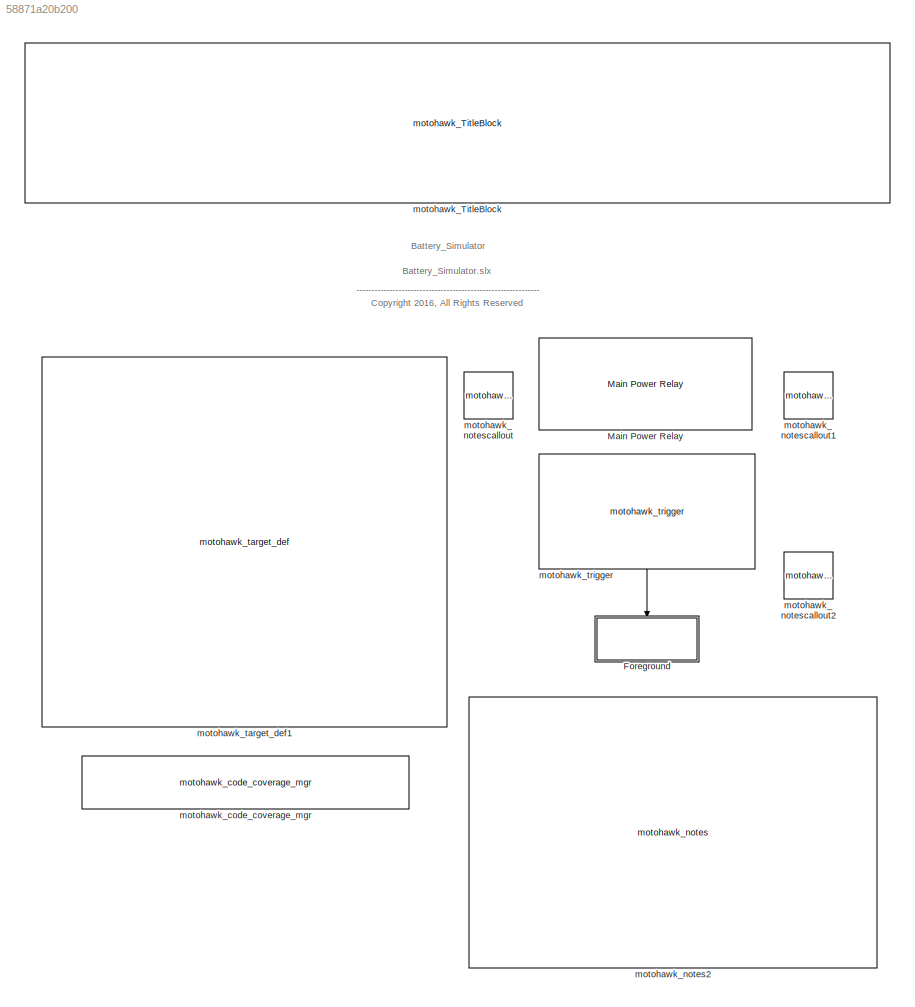
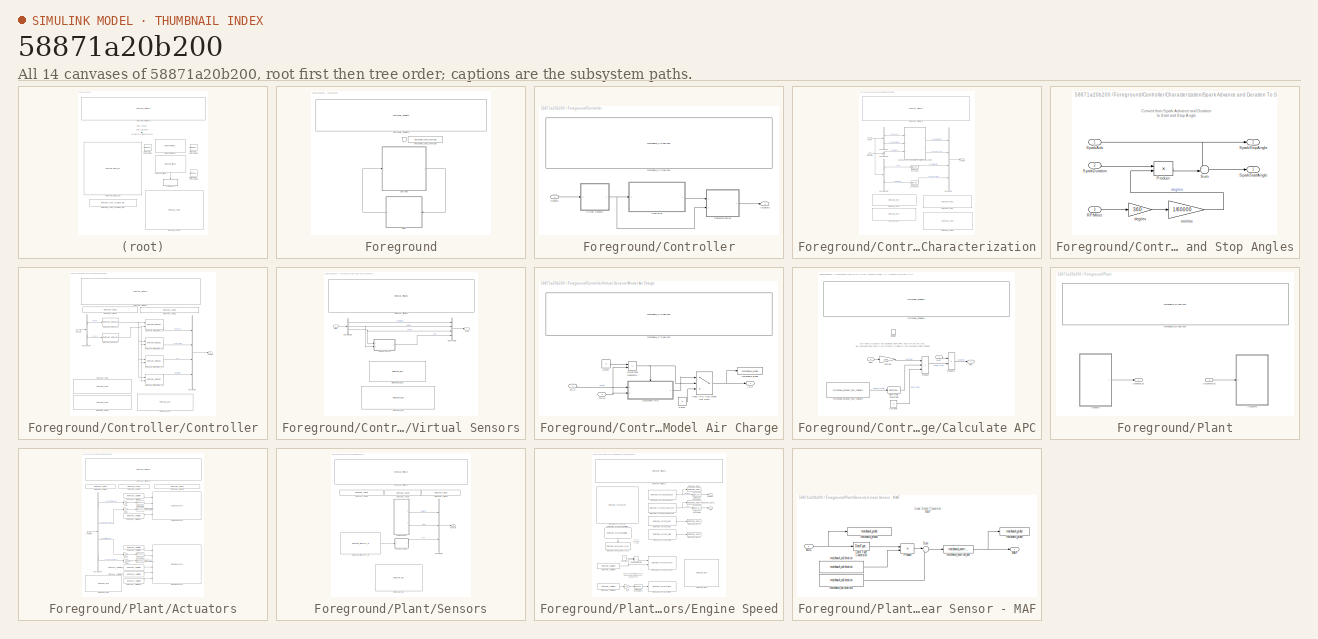
[diagram: thumbnail index - all 14 canvases of the model, root first then tree order]
MODEL slx_58871a20b200
KIND model
CONFIG InitFcn = try, eval([bdroot '_setup']); catch, eval('model_setup', ''); end
CONFIG PreLoadFcn = try, eval([bdroot '_setup']); catch, eval('model_setup', ''); end
BLOCK [SubSystem] Foreground
  Ports = [0, 0, 0, 1]
  RTWFcnNameOpts = Use subsystem name
  RTWFileNameOpts = Use function name
  RTWSystemCode = Nonreusable function
  RequestExecContextInheritance = off
  TreatAsAtomicUnit = on
BLOCK [SubSystem] Foreground/Controller
  MoveFcn = motohawk_block_image(gcb, motohawk_get_param_ws(gcb, 'image_file'));
  OpenFcn = open_system(gcb,'force')
  Ports = [1, 1]
  RequestExecContextInheritance = off
BLOCK [Outport] Foreground/Controller/Actuators
  IconDisplay = Port number
BLOCK [SubSystem] Foreground/Controller/Characterization
  Ports = [2, 1]
  RequestExecContextInheritance = off
BLOCK [Outport] Foreground/Controller/Characterization/Actuators
  IconDisplay = Port number
BLOCK [BusCreator] Foreground/Controller/Characterization/Bus Creator
  DisplayOption = bar
  Ports = [4, 1]
BLOCK [BusSelector] Foreground/Controller/Characterization/Bus Selector
  OutputSignals = SparkAdv,SparkDuration
  Ports = [1, 2]
BLOCK [BusSelector] Foreground/Controller/Characterization/Bus Selector1
  OutputSignals = RPMInst
  Ports = [1, 1]
BLOCK [BusSelector] Foreground/Controller/Characterization/Bus Selector2
  OutputSignals = SOI,InjDuration
  Ports = [1, 2]
BLOCK [Inport] Foreground/Controller/Characterization/Control
  IconDisplay = Port number
BLOCK [DataTypeConversion] Foreground/Controller/Characterization/Data Type Conversion
BLOCK [DataTypeConversion] Foreground/Controller/Characterization/Data Type Conversion1
BLOCK [Inport] Foreground/Controller/Characterization/Sensors
  IconDisplay = Port number
  Port = 2
BLOCK [SubSystem] Foreground/Controller/Characterization/Spark Advance and Duration To Start and Stop Angles
  Ports = [3, 2]
  RequestExecContextInheritance = off
BLOCK [Product] Foreground/Controller/Characterization/Spark Advance and Duration To Start and Stop Angles/Product
  Ports = [2, 1]
  RndMeth = Floor
  SaturateOnIntegerOverflow = off
BLOCK [Inport] Foreground/Controller/Characterization/Spark Advance and Duration To Start and Stop Angles/RPMInst
  IconDisplay = Port number
  Port = 3
BLOCK [Inport] Foreground/Controller/Characterization/Spark Advance and Duration To Start and Stop Angles/SparkAdv
  IconDisplay = Port number
BLOCK [Inport] Foreground/Controller/Characterization/Spark Advance and Duration To Start and Stop Angles/SparkDuration
  IconDisplay = Port number
  Port = 2
BLOCK [Outport] Foreground/Controller/Characterization/Spark Advance and Duration To Start and Stop Angles/SparkStartAngle
  IconDisplay = Port number
BLOCK [Outport] Foreground/Controller/Characterization/Spark Advance and Duration To Start and Stop Angles/SparkStopAngle
  IconDisplay = Port number
  Port = 2
BLOCK [Sum] Foreground/Controller/Characterization/Spark Advance and Duration To Start and Stop Angles/Sum
  IconShape = round
  Inputs = ++|
  OutDataTypeStr = Inherit: Inherit via internal rule
  Ports = [2, 1]
  SaturateOnIntegerOverflow = off
BLOCK [Gain] Foreground/Controller/Characterization/Spark Advance and Duration To Start and Stop Angles/deg//rev
  Gain = 360
BLOCK [Gain] Foreground/Controller/Characterization/Spark Advance and Duration To Start and Stop Angles/min//ms
  Gain = 1/60000
BLOCK [Reference] Foreground/Controller/Characterization/motohawk_TitleBlock  REF=motohawk_annotations_lib/motohawk_TitleBlock
  BlockType_ = 'Mototron_Title_Block'
  Ports = []
  SourceBlock = motohawk_annotations_lib/motohawk_TitleBlock
  SourceType = MotoHawk Title Block
  address = '\fontsize{22}\it\fontname{Arial Black}Woodward \fontname{Arial}\fontsize{10}\newline1000 East Drake Road, Fort Collins, CO, 80525\newlinemcs.woodward.com (866) 588-0494'
  edit_as = 6
  edit_text = [get_param(bdroot, 'Description') '\rm\n\n\nActuator Characterization\n\n\nConverts or linearizes controller units to actuator units\n\n\n']
  image_file = 'mh.jpg'
  pretty_print = on
  ttl = [get_param(bdroot, 'Description') '\rm\newlineActuator Characterization\newlineConverts or linearizes controller units to actuator units\newline']
BLOCK [Reference] Foreground/Controller/Characterization/motohawk_notes  REF=motohawk_annotations_lib/motohawk_notes
  BlockType_ = 'Mototron_Notes'
  Ports = []
  SourceBlock = motohawk_annotations_lib/motohawk_notes
  SourceType = Notes Annotation
  desc = '- Outputs from here are still entirely in engineering\newlineunits, but are converted from a form used by the\newlinecontroller to one required by the physical actuators'
  edit_as = 0
  edit_text = - Outputs from here are still entirely in engineering\n\n\nunits, but are converted from a form used by the\n\n\ncontroller to one required by the physical actuators
BLOCK [Reference] Foreground/Controller/Characterization/motohawk_notes1  REF=motohawk_annotations_lib/motohawk_notes
  BlockType_ = 'Mototron_Notes'
  Ports = []
  SourceBlock = motohawk_annotations_lib/motohawk_notes
  SourceType = Notes Annotation
  desc = '- This is a good place to put a PID controller that\newlineis always enabled, such as an electronic throttle\newlinecontroller (ETC)\newline\newline- The controller outputs a desired setpoint,\newlinea block in this subsystem performs the\newlineclosed-loop control to that position.'
  edit_as = 0
  edit_text = - This is a good place to put a PID controller that\n\n\nis always enabled, such as an electronic throttle\n\n\ncontroller (ETC)\n\n\n\n\n\n- The controller outputs a desired setpoint,\n\n\na block in this subsystem performs the\n\n\nclosed-loop control to that position.
BLOCK [Reference] Foreground/Controller/Characterization/motohawk_todo  REF=motohawk_annotations_lib/motohawk_todo
  BlockType_ = 'Mototron_ToDo'
  Ports = []
  SourceBlock = motohawk_annotations_lib/motohawk_todo
  SourceType = To Do Annotation
  desc = '\fontsize{16}\bfTo Do:\newlineConvert from desired controller units\newlineto those required by each actuator.'
  edit_as = 2
  edit_text = \fontsize{16}\bfTo Do:\n\n\nConvert from desired controller units\n\n\nto those required by each actuator.
BLOCK [Reference] Foreground/Controller/Characterization/motohawk_todo1  REF=motohawk_annotations_lib/motohawk_todo
  BlockType_ = 'Mototron_ToDo'
  Ports = []
  SourceBlock = motohawk_annotations_lib/motohawk_todo
  SourceType = To Do Annotation
  desc = '\fontsize{16}\bfTo Do:\newlinePass-through actuators\newlinethat do not require modification.'
  edit_as = 2
  edit_text = \fontsize{16}\bfTo Do:\n\n\nPass-through actuators\n\n\nthat do not require modification.
BLOCK [SubSystem] Foreground/Controller/Controller
  Ports = [1, 1]
  RequestExecContextInheritance = off
BLOCK [Outport] Foreground/Controller/Controller/Actuators
  IconDisplay = Port number
BLOCK [BusCreator] Foreground/Controller/Controller/Bus Creator
  DisplayOption = bar
  Ports = [4, 1]
BLOCK [BusSelector] Foreground/Controller/Controller/Bus Selector
  OutputSignals = RPM,APC
  Ports = [1, 2]
BLOCK [Inport] Foreground/Controller/Controller/Sensors
  IconDisplay = Port number
BLOCK [Reference] Foreground/Controller/Controller/motohawk_TitleBlock  REF=motohawk_annotations_lib/motohawk_TitleBlock
  BlockType_ = 'Mototron_Title_Block'
  Ports = []
  SourceBlock = motohawk_annotations_lib/motohawk_TitleBlock
  SourceType = MotoHawk Title Block
  address = '\fontsize{22}\it\fontname{Arial Black}Woodward \fontname{Arial}\fontsize{10}\newline1000 East Drake Road, Fort Collins, CO, 80525\newlinemcs.woodward.com (866) 588-0494'
  edit_as = 6
  edit_text = [get_param(bdroot, 'Description') '\rm\n\n\nEngine control system\n\n\nConsists of simple tables for spark and fuel\n\n\n']
  image_file = 'mh.jpg'
  pretty_print = on
  ttl = [get_param(bdroot, 'Description') '\rm\newlineEngine control system\newlineConsists of simple tables for spark and fuel\newline']
BLOCK [Reference] Foreground/Controller/Controller/motohawk_callout1  REF=motohawk_annotations_lib/motohawk_callout1
  BlockType_ = 'Mototron_harea'
  Ports = []
  SourceBlock = motohawk_annotations_lib/motohawk_callout1
  SourceType = Line Callout Annotation
  desc = 'Prelookups for each axis of the tables'
  edit_as = 0
  edit_text = Prelookups for each axis of the tables
BLOCK [Reference] Foreground/Controller/Controller/motohawk_callout2  REF=motohawk_annotations_lib/motohawk_callout1
  BlockType_ = 'Mototron_harea'
  Ports = []
  SourceBlock = motohawk_annotations_lib/motohawk_callout1
  SourceType = Line Callout Annotation
  desc = '2-D interpolated tables for each actuator'
  edit_as = 0
  edit_text = 2-D interpolated tables for each actuator
BLOCK [Reference] Foreground/Controller/Controller/motohawk_interpolation_2d  REF=MotoHawk_lib/Lookup Tables/motohawk_interpolation_2d
  Ports = [2, 1]
  SourceBlock = MotoHawk_lib/Lookup Tables/motohawk_interpolation_2d
  SourceType = MotoHawk Interpolation (2-D)
  col_prelookup_block = ''
  data_stores = motohawk_sfun_interpolation_2d_data_stores
  data_type = Inherit from 'Table Data'
  exp = 1
  gain = 1
  help = ''
  max_val = inf
  min_val = -inf
  mototune_group = motohawk_vardec_path(gcb)
  nam = 'SparkAdv'
  offset = 0
  output_name = ''
  ovr_cals = on
  precision = ''
  read_level = 1
  row_prelookup_block = ''
  show_more = off
  storage = NonAdaptive
  table_data = zeros(11,11)
  units = ''
  use_help = off
  use_links = off
  use_min_max = off
  use_mototune_group = off
  use_precision = off
  write_level = 1
BLOCK [Reference] Foreground/Controller/Controller/motohawk_interpolation_2d1  REF=MotoHawk_lib/Lookup Tables/motohawk_interpolation_2d
  Ports = [2, 1]
  SourceBlock = MotoHawk_lib/Lookup Tables/motohawk_interpolation_2d
  SourceType = MotoHawk Interpolation (2-D)
  col_prelookup_block = ''
  data_stores = motohawk_sfun_interpolation_2d_data_stores
  data_type = Inherit from 'Table Data'
  exp = 1
  gain = 1
  help = ''
  max_val = inf
  min_val = -inf
  mototune_group = motohawk_vardec_path(gcb)
  nam = 'SparkDuration'
  offset = 0
  output_name = ''
  ovr_cals = on
  precision = ''
  read_level = 1
  row_prelookup_block = ''
  show_more = off
  storage = NonAdaptive
  table_data = ones(11,11)
  units = ''
  use_help = off
  use_links = off
  use_min_max = off
  use_mototune_group = off
  use_precision = off
  write_level = 1
BLOCK [Reference] Foreground/Controller/Controller/motohawk_interpolation_2d2  REF=MotoHawk_lib/Lookup Tables/motohawk_interpolation_2d
  Ports = [2, 1]
  SourceBlock = MotoHawk_lib/Lookup Tables/motohawk_interpolation_2d
  SourceType = MotoHawk Interpolation (2-D)
  col_prelookup_block = ''
  data_stores = motohawk_sfun_interpolation_2d_data_stores
  data_type = Inherit from 'Table Data'
  exp = 1
  gain = 1
  help = ''
  max_val = inf
  min_val = -inf
  mototune_group = motohawk_vardec_path(gcb)
  nam = 'SOI'
  offset = 0
  output_name = ''
  ovr_cals = on
  precision = ''
  read_level = 1
  row_prelookup_block = ''
  show_more = off
  storage = NonAdaptive
  table_data = zeros(11,11)
  units = ''
  use_help = off
  use_links = off
  use_min_max = off
  use_mototune_group = off
  use_precision = off
  write_level = 1
BLOCK [Reference] Foreground/Controller/Controller/motohawk_interpolation_2d3  REF=MotoHawk_lib/Lookup Tables/motohawk_interpolation_2d
  Ports = [2, 1]
  SourceBlock = MotoHawk_lib/Lookup Tables/motohawk_interpolation_2d
  SourceType = MotoHawk Interpolation (2-D)
  col_prelookup_block = ''
  data_stores = motohawk_sfun_interpolation_2d_data_stores
  data_type = Inherit from 'Table Data'
  exp = 1
  gain = 1
  help = ''
  max_val = inf
  min_val = -inf
  mototune_group = motohawk_vardec_path(gcb)
  nam = 'InjDuration'
  offset = 0
  output_name = ''
  ovr_cals = on
  precision = ''
  read_level = 1
  row_prelookup_block = ''
  show_more = off
  storage = NonAdaptive
  table_data = 5*ones(11,11)
  units = ''
  use_help = off
  use_links = off
  use_min_max = off
  use_mototune_group = off
  use_precision = off
  write_level = 1
BLOCK [Reference] Foreground/Controller/Controller/motohawk_notes  REF=motohawk_annotations_lib/motohawk_notes
  BlockType_ = 'Mototron_Notes'
  Ports = []
  SourceBlock = motohawk_annotations_lib/motohawk_notes
  SourceType = Notes Annotation
  desc = 'Simplify as much as possible, by offloading work to the\newlineVirtual Sensors and Actuator Characterization subsystems'
  edit_as = 0
  edit_text = Simplify as much as possible, by offloading work to the\n\n\nVirtual Sensors and Actuator Characterization subsystems
BLOCK [Reference] Foreground/Controller/Controller/motohawk_notes1  REF=motohawk_annotations_lib/motohawk_notes
  BlockType_ = 'Mototron_Notes'
  Ports = []
  SourceBlock = motohawk_annotations_lib/motohawk_notes
  SourceType = Notes Annotation
  desc = 'If the controller contains multiple states,\newlinecreate a StateFlow representation of the state machine here.'
  edit_as = 0
  edit_text = If the controller contains multiple states,\n\n\ncreate a StateFlow representation of the state machine here.
BLOCK [Reference] Foreground/Controller/Controller/motohawk_prelookup  REF=MotoHawk_lib/Lookup Tables/motohawk_prelookup
  Ports = [1, 1]
  SourceBlock = MotoHawk_lib/Lookup Tables/motohawk_prelookup
  SourceType = MotoHawk Prelookup Index Search
  breakpoint_data = [0:500:5000]
  data_stores = motohawk_sfun_prelookup_data_stores
  data_type = Inherit from 'Table Data'
  exp = 1
  gain = 1
  help = ''
  input_name = 'RPM'
  max_val = inf
  min_val = -inf
  mototune_group = motohawk_vardec_path(gcb)
  nam = 'RPM'
  offset = 0
  ovr_cals = on
  precision = ''
  read_level = 1
  show_more = on
  storage = Constant
  units = ''
  use_help = off
  use_links = on
  use_min_max = off
  use_mototune_group = off
  use_precision = off
  write_level = 1
BLOCK [Reference] Foreground/Controller/Controller/motohawk_prelookup1  REF=MotoHawk_lib/Lookup Tables/motohawk_prelookup
  Ports = [1, 1]
  SourceBlock = MotoHawk_lib/Lookup Tables/motohawk_prelookup
  SourceType = MotoHawk Prelookup Index Search
  breakpoint_data = [0:0.5:5]
  data_stores = motohawk_sfun_prelookup_data_stores
  data_type = Inherit from 'Table Data'
  exp = 1
  gain = 1
  help = ''
  input_name = 'APC'
  max_val = inf
  min_val = -inf
  mototune_group = motohawk_vardec_path(gcb)
  nam = 'APC'
  offset = 0
  ovr_cals = on
  precision = ''
  read_level = 1
  show_more = on
  storage = Constant
  units = ''
  use_help = off
  use_links = on
  use_min_max = off
  use_mototune_group = off
  use_precision = off
  write_level = 1
BLOCK [Reference] Foreground/Controller/Controller/motohawk_todo  REF=motohawk_annotations_lib/motohawk_todo
  BlockType_ = 'Mototron_ToDo'
  Ports = []
  SourceBlock = motohawk_annotations_lib/motohawk_todo
  SourceType = To Do Annotation
  desc = '\fontsize{16}\bfTo Do:\newlinePerform the actions required by the controller.'
  edit_as = 2
  edit_text = \fontsize{16}\bfTo Do:\n\n\nPerform the actions required by the controller.
BLOCK [Inport] Foreground/Controller/Sensors
  IconDisplay = Port number
BLOCK [SubSystem] Foreground/Controller/Virtual Sensors
  Ports = [1, 1]
  RequestExecContextInheritance = off
BLOCK [BusCreator] Foreground/Controller/Virtual Sensors/Bus Creator
  DisplayOption = bar
  Ports = [4, 1]
BLOCK [BusSelector] Foreground/Controller/Virtual Sensors/Bus Selector
  OutputSignals = RPMInst,RPM,MAF
  Ports = [1, 3]
BLOCK [SubSystem] Foreground/Controller/Virtual Sensors/Model Air Charge
  Ports = [2, 1]
  RequestExecContextInheritance = off
BLOCK [Outport] Foreground/Controller/Virtual Sensors/Model Air Charge/APC
  IconDisplay = Port number
BLOCK [SubSystem] Foreground/Controller/Virtual Sensors/Model Air Charge/Calculate APC
  Ports = [2, 1, 1]
  RequestExecContextInheritance = off
BLOCK [Constant] Foreground/Controller/Virtual Sensors/Model Air Charge/Calculate APC/4-Stroke
  Value = 2
BLOCK [Outport] Foreground/Controller/Virtual Sensors/Model Air Charge/Calculate APC/APC
  IconDisplay = Port number
BLOCK [DataTypeConversion] Foreground/Controller/Virtual Sensors/Model Air Charge/Calculate APC/Data Type Conversion
BLOCK [EnablePort] Foreground/Controller/Virtual Sensors/Model Air Charge/Calculate APC/Enable
  Ports = []
BLOCK [Inport] Foreground/Controller/Virtual Sensors/Model Air Charge/Calculate APC/MAF
  IconDisplay = Port number
BLOCK [Product] Foreground/Controller/Virtual Sensors/Model Air Charge/Calculate APC/Product
  Inputs = **/
  Ports = [3, 1]
  RndMeth = Floor
  SaturateOnIntegerOverflow = off
BLOCK [Product] Foreground/Controller/Virtual Sensors/Model Air Charge/Calculate APC/Product1
  InputSameDT = off
  Inputs = */
  Ports = [2, 1]
  RndMeth = Floor
BLOCK [Inport] Foreground/Controller/Virtual Sensors/Model Air Charge/Calculate APC/RPM
  IconDisplay = Port number
  Port = 2
BLOCK [Gain] Foreground/Controller/Virtual Sensors/Model Air Charge/Calculate APC/min//sec
  Gain = 1/60
  SaturateOnIntegerOverflow = off
BLOCK [Reference] Foreground/Controller/Virtual Sensors/Model Air Charge/Calculate APC/motohawk_TitleBlock  REF=motohawk_annotations_lib/motohawk_TitleBlock
  BlockType_ = 'Mototron_Title_Block'
  Ports = []
  SourceBlock = motohawk_annotations_lib/motohawk_TitleBlock
  SourceType = MotoHawk Title Block
  address = '\fontsize{22}\it\fontname{Arial Black}Woodward \fontname{Arial}\fontsize{10}\newline1000 East Drake Road, Fort Collins, CO, 80525\newlinemcs.woodward.com (866) 588-0494'
  edit_as = 6
  edit_text = [get_param(bdroot, 'Description') '\rm\n\n\nCompute Air Charge per Cylinder\n\n\n(Grams / Event)\n\n\n']
  image_file = 'mh.jpg'
  pretty_print = on
  ttl = [get_param(bdroot, 'Description') '\rm\newlineCompute Air Charge per Cylinder\newline(Grams / Event)\newline']
BLOCK [Reference] Foreground/Controller/Virtual Sensors/Model Air Charge/Calculate APC/motohawk_encoder_num_cylinders  REF=MotoHawk_lib/Encoder Blocks/motohawk_encoder_num_cylinders
  Ports = [0, 1]
  SourceBlock = MotoHawk_lib/Encoder Blocks/motohawk_encoder_num_cylinders
  SourceType = MotoHawk Encoder Current Number of Cylinders
BLOCK [Inport] Foreground/Controller/Virtual Sensors/Model Air Charge/MAF
  IconDisplay = Port number
BLOCK [Switch] Foreground/Controller/Virtual Sensors/Model Air Charge/Pass APC Calc When Not Zero
  Criteria = u2 ~= 0
  InputSameDT = off
BLOCK [Inport] Foreground/Controller/Virtual Sensors/Model Air Charge/RPM
  IconDisplay = Port number
  Port = 2
BLOCK [RelationalOperator] Foreground/Controller/Virtual Sensors/Model Air Charge/Relational Operator1
  InputSameDT = off
  Operator = ~=
  Ports = [2, 1]
BLOCK [Constant] Foreground/Controller/Virtual Sensors/Model Air Charge/Zero1
  OutDataTypeStr = Inherit: Inherit via back propagation
  Value = 0
BLOCK [Constant] Foreground/Controller/Virtual Sensors/Model Air Charge/Zero2
  OutDataTypeStr = Inherit: Inherit via back propagation
  Value = 0
BLOCK [Reference] Foreground/Controller/Virtual Sensors/Model Air Charge/motohawk_TitleBlock  REF=motohawk_annotations_lib/motohawk_TitleBlock
  BlockType_ = 'Mototron_Title_Block'
  Ports = []
  SourceBlock = motohawk_annotations_lib/motohawk_TitleBlock
  SourceType = MotoHawk Title Block
  address = '\fontsize{22}\it\fontname{Arial Black}Woodward \fontname{Arial}\fontsize{10}\newline1000 East Drake Road, Fort Collins, CO, 80525\newlinemcs.woodward.com (866) 588-0494'
  edit_as = 6
  edit_text = [get_param(bdroot, 'Description') '\rm\n\n\nCompute Air Charge per Cylinder\n\n\n(Grams / Event)\n\n\n']
  image_file = 'mh.jpg'
  pretty_print = on
  ttl = [get_param(bdroot, 'Description') '\rm\newlineCompute Air Charge per Cylinder\newline(Grams / Event)\newline']
BLOCK [Reference] Foreground/Controller/Virtual Sensors/Model Air Charge/motohawk_probe  REF=MotoHawk_lib/Calibration & Probing Blocks/motohawk_probe
  Ports = [1]
  SourceBlock = MotoHawk_lib/Calibration & Probing Blocks/motohawk_probe
  SourceType = MotoHawk Probe
  col_header_enum = {}
  enum_struct = {'Disabled', 'Enabled'}
  exp = 1
  gain = 1
  help = ''
  max_val = inf
  min_val = -inf
  mototune_group = motohawk_vardec_path(gcb)
  nam = 'APC'
  name_source = Use Parameter
  offset = 0
  precision = ''
  read_level = 1
  row_header_enum = {}
  show_more = off
  units = ''
  use_header_enum = off
  use_help_units = off
  use_min_max = off
  use_mototune_group = off
  use_precision = off
  vector_style = Wide Row
  view_as = Number
BLOCK [Inport] Foreground/Controller/Virtual Sensors/Real
  IconDisplay = Port number
BLOCK [Outport] Foreground/Controller/Virtual Sensors/Synth
  IconDisplay = Port number
BLOCK [Reference] Foreground/Controller/Virtual Sensors/motohawk_TitleBlock  REF=motohawk_annotations_lib/motohawk_TitleBlock
  BlockType_ = 'Mototron_Title_Block'
  Ports = []
  SourceBlock = motohawk_annotations_lib/motohawk_TitleBlock
  SourceType = MotoHawk Title Block
  address = '\fontsize{22}\it\fontname{Arial Black}Woodward \fontname{Arial}\fontsize{10}\newline1000 East Drake Road, Fort Collins, CO, 80525\newlinemcs.woodward.com (866) 588-0494'
  edit_as = 255
  edit_text = strrep([get_param(bdroot, 'Description')  '\rm\newline'  get_param(gcs, 'Name')], '_', '\_')
  image_file = 'mh.jpg'
  pretty_print = on
  ttl = [get_param(bdroot, 'Description') '\newline\rmVirtual Sensors\newlineModel signals that are not available as H/W sensors,\newlinebut that would be used by the controller if they were physically available']
BLOCK [Reference] Foreground/Controller/Virtual Sensors/motohawk_todo  REF=motohawk_annotations_lib/motohawk_todo
  BlockType_ = 'Mototron_ToDo'
  Ports = []
  SourceBlock = motohawk_annotations_lib/motohawk_todo
  SourceType = To Do Annotation
  desc = '\fontsize{16}\bfTo Do:\newlineModel Extra "Virtual" Sensors\newlineso that the downstream controller can\newlineuse modeled variables as sensor values'
  edit_as = 2
  edit_text = \fontsize{16}\bfTo Do:\n\n\nModel Extra "Virtual" Sensors\n\n\nso that the downstream controller can\n\n\nuse modeled variables as sensor values
BLOCK [Reference] Foreground/Controller/Virtual Sensors/motohawk_todo1  REF=motohawk_annotations_lib/motohawk_todo
  BlockType_ = 'Mototron_ToDo'
  Ports = []
  SourceBlock = motohawk_annotations_lib/motohawk_todo
  SourceType = To Do Annotation
  desc = '\fontsize{16}\bfTo Do:\newlinePass-through sensors\newlinethat do not require modification.'
  edit_as = 2
  edit_text = \fontsize{16}\bfTo Do:\n\n\nPass-through sensors\n\n\nthat do not require modification.
BLOCK [Reference] Foreground/Controller/motohawk_TitleBlock  REF=motohawk_annotations_lib/motohawk_TitleBlock
  BlockType_ = 'Mototron_Title_Block'
  Ports = []
  SourceBlock = motohawk_annotations_lib/motohawk_TitleBlock
  SourceType = MotoHawk Title Block
  address = '\fontsize{22}\it\fontname{Arial Black}Woodward \fontname{Arial}\fontsize{10}\newline1000 East Drake Road, Fort Collins, CO, 80525\newlinemcs.woodward.com (866) 588-0494'
  edit_as = 6
  edit_text = [get_param(bdroot, 'Description') '\rm\n\n\nTop-level design of Controller\n\n\nVirtual Sensors model signals that are not available as H/W sensors\n\n\nCharacterization converts or linearizes Controller units to actuator units\n\n\n']
  image_file = 'mh.jpg'
  pretty_print = on
  ttl = [get_param(bdroot, 'Description') '\rm\newlineTop-level design of Controller\newlineVirtual Sensors model signals that are not available as H/W sensors\newlineCharacterization converts or linearizes Controller units to actuator units\newline']
BLOCK [SubSystem] Foreground/Plant
  MoveFcn = motohawk_block_image(gcb, motohawk_get_param_ws(gcb, 'image_file'));
  OpenFcn = open_system(gcb,'force')
  Ports = [1, 1]
  RequestExecContextInheritance = off
BLOCK [Inport] Foreground/Plant/ActuatorBus
  IconDisplay = Port number
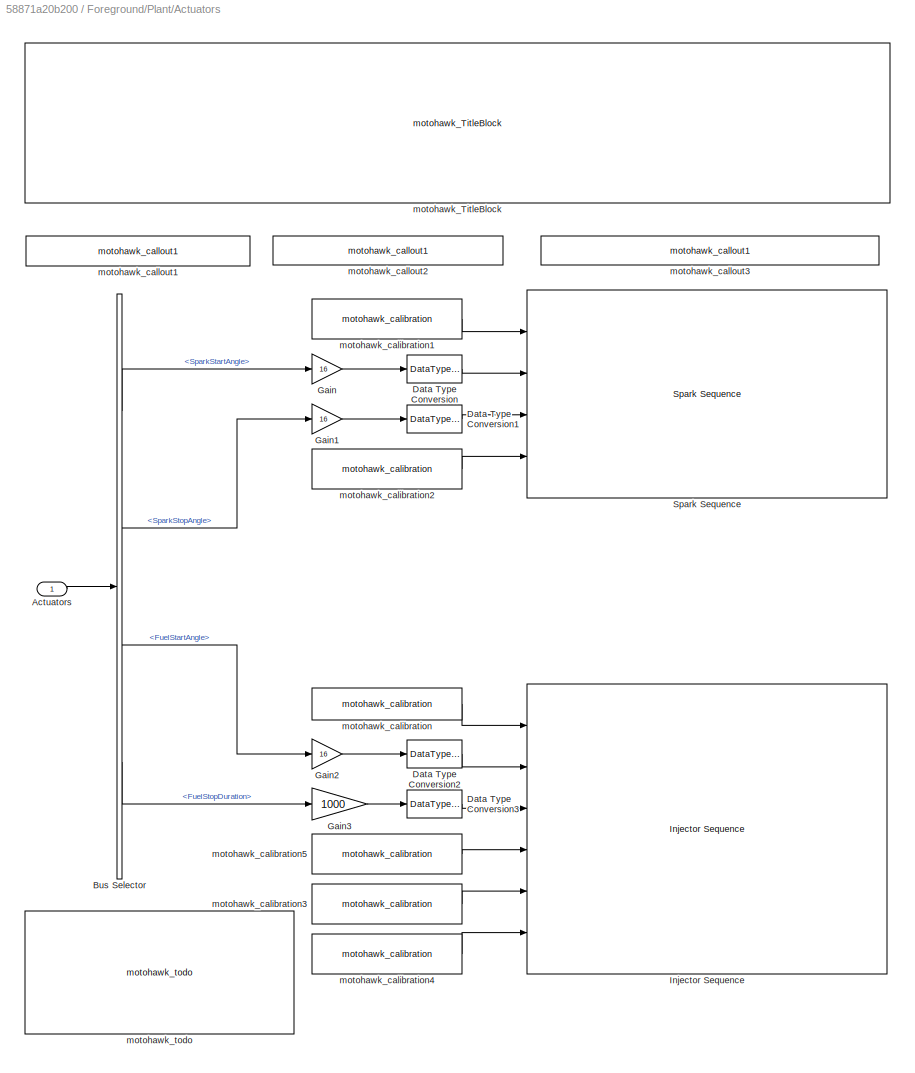
BLOCK [SubSystem] Foreground/Plant/Actuators
  Ports = [1]
  RequestExecContextInheritance = off
BLOCK [Inport] Foreground/Plant/Actuators/Actuators
  IconDisplay = Port number
BLOCK [BusSelector] Foreground/Plant/Actuators/Bus Selector
  OutputSignals = SparkStartAngle,SparkStopAngle,FuelStartAngle,FuelStopDuration
  Ports = [1, 4]
BLOCK [DataTypeConversion] Foreground/Plant/Actuators/Data Type Conversion
BLOCK [DataTypeConversion] Foreground/Plant/Actuators/Data Type Conversion1
BLOCK [DataTypeConversion] Foreground/Plant/Actuators/Data Type Conversion2
BLOCK [DataTypeConversion] Foreground/Plant/Actuators/Data Type Conversion3
BLOCK [Gain] Foreground/Plant/Actuators/Gain
  Gain = 16
BLOCK [Gain] Foreground/Plant/Actuators/Gain1
  Gain = 16
BLOCK [Gain] Foreground/Plant/Actuators/Gain2
  Gain = 16
BLOCK [Gain] Foreground/Plant/Actuators/Gain3
  Gain = 1000
BLOCK [Reference] Foreground/Plant/Actuators/Injector Sequence  REF=MotoHawk_lib/Advanced Digital I//O/Injector Sequence
  Ports = [6]
  SourceBlock = MotoHawk_lib/Advanced Digital I//O/Injector Sequence
  SourceType = MotoHawk Injector Sequence
  UserDataPersistent = on
  behavior = Standard
  code_resource = NONE
  granularity = Fine
  group = 'System | I/O Pins | Injector Config'
  min_duration = 1.5
  min_duration_mode = Static
  min_eoi_soi_angle = 90
  nam = 'INJ_'
  read_level = 1
  resource_enum_str = (None)=-1,FINJ1=12,FINJ2=13,FINJ3=14,FINJ4=15,FINJ5=16,FINJ6=17,FINJ7=18,FINJ8=19,FINJ9=20,FINJ10=21,FINJ11=22,FINJ12=23
  sequence_type = Standard (Injector per cylinder)
  show_trans_enable = off
  target = ECU565-128
  text_resource = FINJ1
  update_mode = OS
  use_diag = off
  use_makeup = off
  use_vardec = off
  val_resource = -1
  write_level = 1
BLOCK [Reference] Foreground/Plant/Actuators/Spark Sequence  REF=MotoHawk_lib/Advanced Digital I//O/Spark Sequence
  Ports = [4]
  SourceBlock = MotoHawk_lib/Advanced Digital I//O/Spark Sequence
  SourceType = MotoHawk Spark Sequence
  UserDataPersistent = on
  code_resource = NONE
  granularity = Fine
  group = 'System | I/O Pins | Spark Config'
  min_duration = 1.5
  min_duration_mode = Static
  nam = 'EST_'
  open_threshold = 500
  read_level = 1
  resource_enum_str = (None)=-1,EST 1=36,EST 2=37,EST 3=38,EST 4=39,EST 5=40,EST 6=41,EST 7=42,EST 8=43,EST 9=44,EST 10=45,EST 11=46,EST 12=47,EST 13=48,EST 14=49,EST 15=50,EST 16=51
  sequence_type = Standard (Coil per cylinder)
  stop_mode = Angle Controlled
  target = ECU565-128
  text_resource = EST 1
  update_mode = OS
  use_diag = off
  use_vardec = off
  val_resource = -1
  write_level = 1
BLOCK [Reference] Foreground/Plant/Actuators/motohawk_TitleBlock  REF=motohawk_annotations_lib/motohawk_TitleBlock
  BlockType_ = 'Mototron_Title_Block'
  Ports = []
  SourceBlock = motohawk_annotations_lib/motohawk_TitleBlock
  SourceType = MotoHawk Title Block
  address = '\fontsize{22}\it\fontname{Arial Black}Woodward \fontname{Arial}\fontsize{10}\newline1000 East Drake Road, Fort Collins, CO, 80525\newlinemcs.woodward.com (866) 588-0494'
  edit_as = 6
  edit_text = [get_param(bdroot, 'Description') '\rm\n\n\nSample H/W sensors, such as:\n\n\nA/D converters, digital inputs, frequency inputs, and engine encoder\n\n\n']
  image_file = 'mh.jpg'
  pretty_print = on
  ttl = [get_param(bdroot, 'Description') '\rm\newlineSample H/W sensors, such as:\newlineA/D converters, digital inputs, frequency inputs, and engine encoder\newline']
BLOCK [Reference] Foreground/Plant/Actuators/motohawk_calibration  REF=MotoHawk_lib/Calibration & Probing Blocks/motohawk_calibration
  Ports = [0, 1]
  SourceBlock = MotoHawk_lib/Calibration & Probing Blocks/motohawk_calibration
  SourceType = MotoHawk Calibration
  col_header_enum = {}
  data_stores = motohawk_sfun_calibration_data_stores
  data_type = Inherit from 'Default Value'
  enum_struct = {'Disabled', 'Enabled'}
  exp = 1
  gain = 1
  help = ''
  max_val = inf
  min_val = -inf
  mototune_group = motohawk_vardec_path(gcb)
  nam = 'InjectorEnable'
  name_source = Use Parameter
  offset = 0
  ovr_cals = on
  precision = ''
  read_level = 1
  row_header_enum = {}
  show_more = on
  storage = Display
  units = ''
  use_header_enum = off
  use_help_units = off
  use_min_max = off
  use_mototune_group = off
  use_precision = off
  val = false
  vector_style = Wide Row
  view_as = Enumeration
  write_level = 1
BLOCK [Reference] Foreground/Plant/Actuators/motohawk_calibration1  REF=MotoHawk_lib/Calibration & Probing Blocks/motohawk_calibration
  Ports = [0, 1]
  SourceBlock = MotoHawk_lib/Calibration & Probing Blocks/motohawk_calibration
  SourceType = MotoHawk Calibration
  col_header_enum = {}
  data_stores = motohawk_sfun_calibration_data_stores
  data_type = Inherit from 'Default Value'
  enum_struct = {'Disabled', 'Enabled'}
  exp = 1
  gain = 1
  help = ''
  max_val = inf
  min_val = -inf
  mototune_group = motohawk_vardec_path(gcb)
  nam = 'SparkEnable'
  name_source = Use Parameter
  offset = 0
  ovr_cals = on
  precision = ''
  read_level = 1
  row_header_enum = {}
  show_more = on
  storage = Display
  units = ''
  use_header_enum = off
  use_help_units = off
  use_min_max = off
  use_mototune_group = off
  use_precision = off
  val = false
  vector_style = Wide Row
  view_as = Enumeration
  write_level = 1
BLOCK [Reference] Foreground/Plant/Actuators/motohawk_calibration2  REF=MotoHawk_lib/Calibration & Probing Blocks/motohawk_calibration
  Ports = [0, 1]
  SourceBlock = MotoHawk_lib/Calibration & Probing Blocks/motohawk_calibration
  SourceType = MotoHawk Calibration
  col_header_enum = {}
  data_stores = motohawk_sfun_calibration_data_stores
  data_type = Inherit via back propagation
  enum_struct = {'Disabled', 'Enabled'}
  exp = 1
  gain = 1
  help = 'Maximum duration for a spark pulse.  Must be a multiple of 5ms'
  max_val = inf
  min_val = -inf
  mototune_group = motohawk_vardec_path(gcb)
  nam = 'SparkMaxDuration'
  name_source = Use Parameter
  offset = 0
  ovr_cals = on
  precision = ''
  read_level = 1
  row_header_enum = {}
  show_more = on
  storage = Calibration
  units = 'us'
  use_header_enum = off
  use_help_units = on
  use_min_max = off
  use_mototune_group = off
  use_precision = off
  val = 5000
  vector_style = Wide Row
  view_as = Number
  write_level = 1
BLOCK [Reference] Foreground/Plant/Actuators/motohawk_calibration3  REF=MotoHawk_lib/Calibration & Probing Blocks/motohawk_calibration
  Ports = [0, 1]
  SourceBlock = MotoHawk_lib/Calibration & Probing Blocks/motohawk_calibration
  SourceType = MotoHawk Calibration
  col_header_enum = {}
  data_stores = motohawk_sfun_calibration_data_stores
  data_type = Inherit via back propagation
  enum_struct = {'Disabled', 'Enabled'}
  exp = 1
  gain = 1
  help = 'Maximum duration for an injector pulse.  Must be a multiple of 5ms'
  max_val = inf
  min_val = -inf
  mototune_group = motohawk_vardec_path(gcb)
  nam = 'InjectorMaxDuration'
  name_source = Use Parameter
  offset = 0
  ovr_cals = on
  precision = ''
  read_level = 1
  row_header_enum = {}
  show_more = on
  storage = Calibration
  units = 'us'
  use_header_enum = off
  use_help_units = on
  use_min_max = off
  use_mototune_group = off
  use_precision = off
  val = 500000
  vector_style = Wide Row
  view_as = Number
  write_level = 1
BLOCK [Reference] Foreground/Plant/Actuators/motohawk_calibration4  REF=MotoHawk_lib/Calibration & Probing Blocks/motohawk_calibration
  Ports = [0, 1]
  SourceBlock = MotoHawk_lib/Calibration & Probing Blocks/motohawk_calibration
  SourceType = MotoHawk Calibration
  col_header_enum = {}
  data_stores = motohawk_sfun_calibration_data_stores
  data_type = Inherit via back propagation
  enum_struct = {'Disabled', 'Enabled'}
  exp = 1
  gain = 1
  help = 'Extra duration added to each generated pulse to account for the injector turn on and turn off time'
  max_val = inf
  min_val = -inf
  mototune_group = motohawk_vardec_path(gcb)
  nam = 'InjectorElectricalOffset'
  name_source = Use Parameter
  offset = 0
  ovr_cals = on
  precision = ''
  read_level = 1
  row_header_enum = {}
  show_more = on
  storage = Calibration
  units = 'us'
  use_header_enum = off
  use_help_units = on
  use_min_max = off
  use_mototune_group = off
  use_precision = off
  val = 0
  vector_style = Wide Row
  view_as = Number
  write_level = 1
BLOCK [Reference] Foreground/Plant/Actuators/motohawk_calibration5  REF=MotoHawk_lib/Calibration & Probing Blocks/motohawk_calibration
  Ports = [0, 1]
  SourceBlock = MotoHawk_lib/Calibration & Probing Blocks/motohawk_calibration
  SourceType = MotoHawk Calibration
  col_header_enum = {}
  data_stores = motohawk_sfun_calibration_data_stores
  data_type = Inherit via back propagation
  enum_struct = {'Disabled', 'Enabled'}
  exp = 1
  gain = 1
  help = 'For a low-impedance injector using the peak-and-hold driver, the duration of the peak portion of the total injector pulse'
  max_val = inf
  min_val = -inf
  mototune_group = motohawk_vardec_path(gcb)
  nam = 'InjectorPeakDuration'
  name_source = Use Parameter
  offset = 0
  ovr_cals = on
  precision = ''
  read_level = 1
  row_header_enum = {}
  show_more = on
  storage = Calibration
  units = 'us'
  use_header_enum = off
  use_help_units = on
  use_min_max = off
  use_mototune_group = off
  use_precision = off
  val = 0
  vector_style = Wide Row
  view_as = Number
  write_level = 1
BLOCK [Reference] Foreground/Plant/Actuators/motohawk_callout1  REF=motohawk_annotations_lib/motohawk_callout1
  BlockType_ = 'Mototron_harea'
  Ports = []
  SourceBlock = motohawk_annotations_lib/motohawk_callout1
  SourceType = Line Callout Annotation
  desc = 'Read from Bus of Actuators'
  edit_as = 0
  edit_text = Read from Bus of Actuators
BLOCK [Reference] Foreground/Plant/Actuators/motohawk_callout2  REF=motohawk_annotations_lib/motohawk_callout1
  BlockType_ = 'Mototron_harea'
  Ports = []
  SourceBlock = motohawk_annotations_lib/motohawk_callout1
  SourceType = Line Callout Annotation
  desc = 'Convert from Engineering Units'
  edit_as = 0
  edit_text = Convert from Engineering Units
BLOCK [Reference] Foreground/Plant/Actuators/motohawk_callout3  REF=motohawk_annotations_lib/motohawk_callout1
  BlockType_ = 'Mototron_harea'
  Ports = []
  SourceBlock = motohawk_annotations_lib/motohawk_callout1
  SourceType = Line Callout Annotation
  desc = 'Drive H/W Actuators'
  edit_as = 0
  edit_text = Drive H/W Actuators
BLOCK [Reference] Foreground/Plant/Actuators/motohawk_todo  REF=motohawk_annotations_lib/motohawk_todo
  BlockType_ = 'Mototron_ToDo'
  Ports = []
  SourceBlock = motohawk_annotations_lib/motohawk_todo
  SourceType = To Do Annotation
  desc = '\fontsize{16}\bfTo Do:\newlineAdd actuator blocks and\newlineconvert from engineering units'
  edit_as = 2
  edit_text = \fontsize{16}\bfTo Do:\n\n\nAdd actuator blocks and\n\n\nconvert from engineering units
BLOCK [Outport] Foreground/Plant/SensorBus
  IconDisplay = Port number
BLOCK [SubSystem] Foreground/Plant/Sensors
  Ports = [0, 1]
  RequestExecContextInheritance = off
BLOCK [BusCreator] Foreground/Plant/Sensors/Bus Creator
  DisplayOption = bar
  Inputs = 3
  Ports = [3, 1]
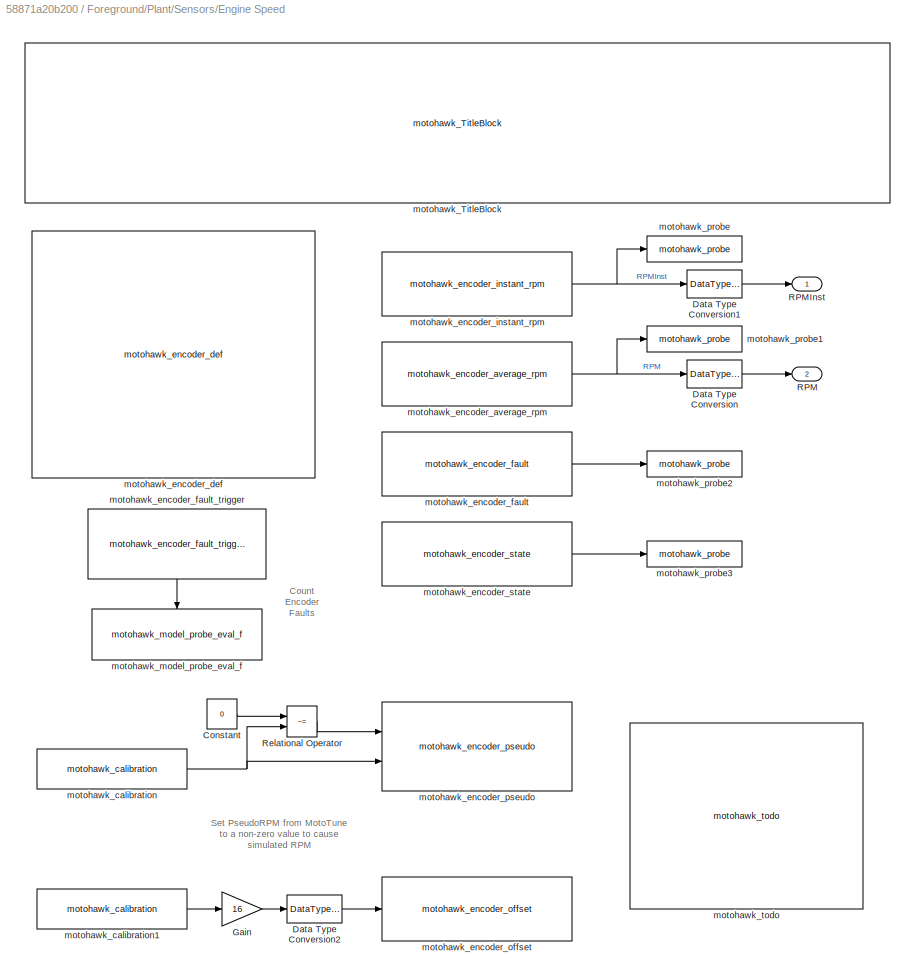
BLOCK [SubSystem] Foreground/Plant/Sensors/Engine Speed
  Ports = [0, 2]
  RequestExecContextInheritance = off
BLOCK [Constant] Foreground/Plant/Sensors/Engine Speed/Constant
  OutDataTypeStr = Inherit: Inherit via back propagation
  Value = 0
BLOCK [DataTypeConversion] Foreground/Plant/Sensors/Engine Speed/Data Type Conversion
BLOCK [DataTypeConversion] Foreground/Plant/Sensors/Engine Speed/Data Type Conversion1
BLOCK [DataTypeConversion] Foreground/Plant/Sensors/Engine Speed/Data Type Conversion2
BLOCK [Gain] Foreground/Plant/Sensors/Engine Speed/Gain
  Gain = 16
  SaturateOnIntegerOverflow = off
BLOCK [Outport] Foreground/Plant/Sensors/Engine Speed/RPM
  IconDisplay = Port number
  Port = 2
BLOCK [Outport] Foreground/Plant/Sensors/Engine Speed/RPMInst
  IconDisplay = Port number
BLOCK [RelationalOperator] Foreground/Plant/Sensors/Engine Speed/Relational Operator
  Operator = ~=
  Ports = [2, 1]
  ZeroCross = off
BLOCK [Reference] Foreground/Plant/Sensors/Engine Speed/motohawk_TitleBlock  REF=motohawk_annotations_lib/motohawk_TitleBlock
  BlockType_ = 'Mototron_Title_Block'
  Ports = []
  SourceBlock = motohawk_annotations_lib/motohawk_TitleBlock
  SourceType = MotoHawk Title Block
  address = '\fontsize{22}\it\fontname{Arial Black}Woodward \fontname{Arial}\fontsize{10}\newline1000 East Drake Road, Fort Collins, CO, 80525\newlinemcs.woodward.com (866) 588-0494'
  edit_as = 6
  edit_text = [get_param(bdroot, 'Description') '\rm\n\n\nEngine Encoder Interface\n\n\nOutput RPM for use in the controller\n\n\n']
  image_file = 'mh.jpg'
  pretty_print = on
  ttl = [get_param(bdroot, 'Description') '\rm\newlineEngine Encoder Interface\newlineOutput RPM for use in the controller\newline']
BLOCK [Reference] Foreground/Plant/Sensors/Engine Speed/motohawk_calibration  REF=MotoHawk_lib/Calibration & Probing Blocks/motohawk_calibration
  Ports = [0, 1]
  SourceBlock = MotoHawk_lib/Calibration & Probing Blocks/motohawk_calibration
  SourceType = MotoHawk Calibration
  col_header_enum = {}
  data_stores = motohawk_sfun_calibration_data_stores
  data_type = Inherit via back propagation
  enum_struct = {'Disabled', 'Enabled'}
  exp = 1
  gain = 1
  help = ''
  max_val = inf
  min_val = -inf
  mototune_group = motohawk_vardec_path(gcb)
  nam = 'PseudoRPM'
  name_source = Use Parameter
  offset = 0
  ovr_cals = on
  precision = ''
  read_level = 1
  row_header_enum = {}
  show_more = on
  storage = Display
  units = ''
  use_header_enum = off
  use_help_units = off
  use_min_max = off
  use_mototune_group = off
  use_precision = off
  val = 0
  vector_style = Wide Row
  view_as = Number
  write_level = 1
BLOCK [Reference] Foreground/Plant/Sensors/Engine Speed/motohawk_calibration1  REF=MotoHawk_lib/Calibration & Probing Blocks/motohawk_calibration
  Ports = [0, 1]
  SourceBlock = MotoHawk_lib/Calibration & Probing Blocks/motohawk_calibration
  SourceType = MotoHawk Calibration
  col_header_enum = {}
  data_stores = motohawk_sfun_calibration_data_stores
  data_type = Inherit via back propagation
  enum_struct = {'Disabled', 'Enabled'}
  exp = 1
  gain = 1
  help = 'TDC offset of crank sensor, in degrees before TDC1.  Used to align sensor with crank angle.'
  max_val = 720
  min_val = 0
  mototune_group = 'System | Encoder | Encoder Config'
  nam = 'EncoderTDCOffset'
  name_source = Use Parameter
  offset = 0
  ovr_cals = on
  precision = ''
  read_level = 1
  row_header_enum = {}
  show_more = on
  storage = Calibration
  units = 'degCA'
  use_header_enum = off
  use_help_units = on
  use_min_max = on
  use_mototune_group = on
  use_precision = off
  val = 0
  vector_style = Wide Row
  view_as = Number
  write_level = 1
BLOCK [Reference] Foreground/Plant/Sensors/Engine Speed/motohawk_encoder_average_rpm  REF=MotoHawk_lib/Encoder Blocks/motohawk_encoder_average_rpm
  Ports = [0, 1]
  SourceBlock = MotoHawk_lib/Encoder Blocks/motohawk_encoder_average_rpm
  SourceType = MotoHawk Average RPM
  resolution = 1
BLOCK [Reference] Foreground/Plant/Sensors/Engine Speed/motohawk_encoder_def  REF=MotoHawk_lib/Encoder Blocks/motohawk_encoder_def
  Ports = []
  SourceBlock = MotoHawk_lib/Encoder Blocks/motohawk_encoder_def
  SourceType = MotoHawk Encoder Definition
  UserDataPersistent = on
  adaptive_vr_cam = on
  adaptive_vr_cnk = off
  angle_offset = 0
  angles = [0 360 180 540]
  cal_cylinders = on
  cam_delay = 0
  campullup = Weak Pullup
  camsync = Rising Edge
  cnk_align_with_cam = off
  crnkpullup = Weak Pullup
  encoder_type = 60 Minus 2 - 4-Stroke - No CAM
  group = 'System | Encoder'
  ignore_delay = 0
  ignore_teeth = 0
  interface = VR Crank
  max_cylinders = 8
  num_cylinders = 4
  ovr_cals = on
  read_level = 1
  sec_tdcoffset = -34.3
  sync = Falling Edge
  teeth_after_cam = -1
  write_level = 1
BLOCK [Reference] Foreground/Plant/Sensors/Engine Speed/motohawk_encoder_fault  REF=MotoHawk_lib/Encoder Blocks/motohawk_encoder_fault
  Ports = [0, 1]
  SourceBlock = MotoHawk_lib/Encoder Blocks/motohawk_encoder_fault
  SourceType = MotoHawk Encoder Fault Status
BLOCK [Reference] Foreground/Plant/Sensors/Engine Speed/motohawk_encoder_fault_trigger  REF=MotoHawk_lib/Encoder Blocks/motohawk_encoder_fault_trigger
  Ports = [0, 1]
  SourceBlock = MotoHawk_lib/Encoder Blocks/motohawk_encoder_fault_trigger
  SourceType = MotoHawk Encoder Fault Trigger
  Tag = Trigger
  UserDataPersistent = on
  inherited = off
  trig_name = []
BLOCK [Reference] Foreground/Plant/Sensors/Engine Speed/motohawk_encoder_instant_rpm  REF=MotoHawk_lib/Encoder Blocks/motohawk_encoder_instant_rpm
  Ports = [0, 1]
  SourceBlock = MotoHawk_lib/Encoder Blocks/motohawk_encoder_instant_rpm
  SourceType = MotoHawk Instant RPM
  resolution = 1
BLOCK [Reference] Foreground/Plant/Sensors/Engine Speed/motohawk_encoder_offset  REF=MotoHawk_lib/Encoder Blocks/motohawk_encoder_offset
  Ports = [1]
  SourceBlock = MotoHawk_lib/Encoder Blocks/motohawk_encoder_offset
  SourceType = MotoHawk Encoder TDC Offset
BLOCK [Reference] Foreground/Plant/Sensors/Engine Speed/motohawk_encoder_pseudo  REF=MotoHawk_lib/Encoder Blocks/motohawk_encoder_pseudo
  Ports = [2]
  SourceBlock = MotoHawk_lib/Encoder Blocks/motohawk_encoder_pseudo
  SourceType = MotoHawk Pseudo-Encoder
BLOCK [Reference] Foreground/Plant/Sensors/Engine Speed/motohawk_encoder_state  REF=MotoHawk_lib/Encoder Blocks/motohawk_encoder_state
  Ports = [0, 1]
  SourceBlock = MotoHawk_lib/Encoder Blocks/motohawk_encoder_state
  SourceType = MotoHawk Encoder State
BLOCK [Reference] Foreground/Plant/Sensors/Engine Speed/motohawk_model_probe_eval_f  REF=MotoHawk_lib/Extra Development Blocks/motohawk_model_probe_eval_f
  Ports = [0, 0, 0, 1]
  SourceBlock = MotoHawk_lib/Extra Development Blocks/motohawk_model_probe_eval_f
  SourceType = MotoHawk Debug Probe Eval (Triggered)
  group = motohawk_vardec_path(gcb)
  nam = 'EncoderFaultCount'
BLOCK [Reference] Foreground/Plant/Sensors/Engine Speed/motohawk_probe  REF=MotoHawk_lib/Calibration & Probing Blocks/motohawk_probe
  Ports = [1]
  SourceBlock = MotoHawk_lib/Calibration & Probing Blocks/motohawk_probe
  SourceType = MotoHawk Probe
  col_header_enum = {}
  enum_struct = {'Disabled', 'Enabled'}
  exp = 1
  gain = 1
  help = ''
  max_val = inf
  min_val = -inf
  mototune_group = motohawk_vardec_path(gcb)
  nam = 'RPMInst'
  name_source = Use Input Wire Name
  offset = 0
  precision = ''
  read_level = 1
  row_header_enum = {}
  show_more = on
  units = ''
  use_header_enum = off
  use_help_units = off
  use_min_max = off
  use_mototune_group = off
  use_precision = off
  vector_style = Wide Row
  view_as = Number
BLOCK [Reference] Foreground/Plant/Sensors/Engine Speed/motohawk_probe1  REF=MotoHawk_lib/Calibration & Probing Blocks/motohawk_probe
  Ports = [1]
  SourceBlock = MotoHawk_lib/Calibration & Probing Blocks/motohawk_probe
  SourceType = MotoHawk Probe
  col_header_enum = {}
  enum_struct = {'Disabled', 'Enabled'}
  exp = 1
  gain = 1
  help = ''
  max_val = inf
  min_val = -inf
  mototune_group = motohawk_vardec_path(gcb)
  nam = 'RPM'
  name_source = Use Input Wire Name
  offset = 0
  precision = ''
  read_level = 1
  row_header_enum = {}
  show_more = on
  units = ''
  use_header_enum = off
  use_help_units = off
  use_min_max = off
  use_mototune_group = off
  use_precision = off
  vector_style = Wide Row
  view_as = Number
BLOCK [Reference] Foreground/Plant/Sensors/Engine Speed/motohawk_probe2  REF=MotoHawk_lib/Calibration & Probing Blocks/motohawk_probe
  Ports = [1]
  SourceBlock = MotoHawk_lib/Calibration & Probing Blocks/motohawk_probe
  SourceType = MotoHawk Probe
  col_header_enum = {}
  enum_struct = {'OK', 'Crank Sync Fault', 'Reverse Rotation', 'No Crank Edges', 'No CAM Edges', 'CAM Sync Fault','Encoder Sync Error on Slave','Reverse Rotation on Slave','Slave Encoder Loss'}
  exp = 1
  gain = 1
  help = 'Encoder synchronization fault status'
  max_val = inf
  min_val = -inf
  mototune_group = motohawk_vardec_path(gcb)
  nam = 'EncoderFault'
  name_source = Use Parameter
  offset = 0
  precision = ''
  read_level = 1
  row_header_enum = {}
  show_more = on
  units = ''
  use_header_enum = off
  use_help_units = on
  use_min_max = off
  use_mototune_group = off
  use_precision = off
  vector_style = Wide Row
  view_as = Enumeration
BLOCK [Reference] Foreground/Plant/Sensors/Engine Speed/motohawk_probe3  REF=MotoHawk_lib/Calibration & Probing Blocks/motohawk_probe
  Ports = [1]
  SourceBlock = MotoHawk_lib/Calibration & Probing Blocks/motohawk_probe
  SourceType = MotoHawk Probe
  col_header_enum = {}
  enum_struct = {'', 'Zero Speed', 'Position Unknown', 'Crank Sync - CAM Unknown', 'Crank Sync - CAM Sync', 'Crank Sync - Master Only', 'Crank Sync - Slave Only', 'Crank Sync - Master + Slave'}
  exp = 1
  gain = 1
  help = 'Encoder synchronization status'
  max_val = inf
  min_val = -inf
  mototune_group = motohawk_vardec_path(gcb)
  nam = 'EncoderState'
  name_source = Use Parameter
  offset = 0
  precision = ''
  read_level = 1
  row_header_enum = {}
  show_more = on
  units = ''
  use_header_enum = off
  use_help_units = on
  use_min_max = off
  use_mototune_group = off
  use_precision = off
  vector_style = Wide Row
  view_as = Enumeration
BLOCK [Reference] Foreground/Plant/Sensors/Engine Speed/motohawk_todo  REF=motohawk_annotations_lib/motohawk_todo
  BlockType_ = 'Mototron_ToDo'
  Ports = []
  SourceBlock = motohawk_annotations_lib/motohawk_todo
  SourceType = To Do Annotation
  desc = '\fontsize{16}\bfTo Do:\newlineSetup encoder interface\newlinefor a specific engine'
  edit_as = 2
  edit_text = \fontsize{16}\bfTo Do:\n\n\nSetup encoder interface\n\n\nfor a specific engine
BLOCK [SubSystem] Foreground/Plant/Sensors/Linear Sensor - MAF
  Ports = [1, 1]
  RequestExecContextInheritance = off
BLOCK [Inport] Foreground/Plant/Sensors/Linear Sensor - MAF/ADC
  IconDisplay = Port number
BLOCK [DataTypeConversion] Foreground/Plant/Sensors/Linear Sensor - MAF/Data Type Conversion
BLOCK [Outport] Foreground/Plant/Sensors/Linear Sensor - MAF/MAF
  IconDisplay = Port number
BLOCK [Product] Foreground/Plant/Sensors/Linear Sensor - MAF/Product
  Ports = [2, 1]
  RndMeth = Floor
  SaturateOnIntegerOverflow = off
BLOCK [Sum] Foreground/Plant/Sensors/Linear Sensor - MAF/Sum
  IconShape = round
  Inputs = |++
  OutDataTypeStr = Inherit: Inherit via internal rule
  Ports = [2, 1]
  SaturateOnIntegerOverflow = off
BLOCK [Reference] Foreground/Plant/Sensors/Linear Sensor - MAF/motohawk_calibration  REF=MotoHawk_lib/Calibration & Probing Blocks/motohawk_calibration
  Ports = [0, 1]
  SourceBlock = MotoHawk_lib/Calibration & Probing Blocks/motohawk_calibration
  SourceType = MotoHawk Calibration
  col_header_enum = {}
  data_stores = motohawk_sfun_calibration_data_stores
  data_type = Inherit from 'Default Value'
  enum_struct = {'Disabled', 'Enabled'}
  exp = 1
  gain = 1
  help = ''
  max_val = inf
  min_val = -inf
  mototune_group = motohawk_vardec_path(gcb)
  nam = 'MAF_Gain'
  name_source = Use Parameter
  offset = 0
  ovr_cals = on
  precision = ''
  read_level = 1
  row_header_enum = {}
  show_more = off
  storage = Calibration
  units = ''
  use_header_enum = off
  use_help_units = off
  use_min_max = off
  use_mototune_group = off
  use_precision = off
  val = 1
  vector_style = Wide Row
  view_as = Number
  write_level = 1
BLOCK [Reference] Foreground/Plant/Sensors/Linear Sensor - MAF/motohawk_calibration1  REF=MotoHawk_lib/Calibration & Probing Blocks/motohawk_calibration
  Ports = [0, 1]
  SourceBlock = MotoHawk_lib/Calibration & Probing Blocks/motohawk_calibration
  SourceType = MotoHawk Calibration
  col_header_enum = {}
  data_stores = motohawk_sfun_calibration_data_stores
  data_type = Inherit from 'Default Value'
  enum_struct = {'Disabled', 'Enabled'}
  exp = 1
  gain = 1
  help = ''
  max_val = inf
  min_val = -inf
  mototune_group = motohawk_vardec_path(gcb)
  nam = 'MAF_Offset'
  name_source = Use Parameter
  offset = 0
  ovr_cals = on
  precision = ''
  read_level = 1
  row_header_enum = {}
  show_more = off
  storage = Calibration
  units = ''
  use_header_enum = off
  use_help_units = off
  use_min_max = off
  use_mototune_group = off
  use_precision = off
  val = 0
  vector_style = Wide Row
  view_as = Number
  write_level = 1
BLOCK [Reference] Foreground/Plant/Sensors/Linear Sensor - MAF/motohawk_override_abs  REF=MotoHawk_lib/Calibration & Probing Blocks/motohawk_override_abs
  Ports = [1, 1]
  SourceBlock = MotoHawk_lib/Calibration & Probing Blocks/motohawk_override_abs
  SourceType = MotoHawk Absolute Override
  enum_struct = {'Disabled', 'Enabled'}
  name_source = Use Parameter
  parent_exp = 1
  parent_gain = 1
  parent_group = motohawk_vardec_path(gcb)
  parent_help = ''
  parent_max = inf
  parent_min = -inf
  parent_name = 'MAF'
  parent_offset = 0
  parent_override_level = 1
  parent_precision = ''
  parent_read_level = 1
  parent_units = ''
  parent_val = 0
  show_more = off
  use_help_units = off
  use_min_max = off
  use_mototune_group = off
  use_precision = off
  view_as = Number
BLOCK [Reference] Foreground/Plant/Sensors/Linear Sensor - MAF/motohawk_probe  REF=MotoHawk_lib/Calibration & Probing Blocks/motohawk_probe
  Ports = [1]
  SourceBlock = MotoHawk_lib/Calibration & Probing Blocks/motohawk_probe
  SourceType = MotoHawk Probe
  col_header_enum = {}
  enum_struct = {'Disabled', 'Enabled'}
  exp = 1
  gain = 1
  help = ''
  max_val = inf
  min_val = -inf
  mototune_group = motohawk_vardec_path(gcb)
  nam = 'MAF'
  name_source = Use Parameter
  offset = 0
  precision = ''
  read_level = 1
  row_header_enum = {}
  show_more = off
  units = ''
  use_header_enum = off
  use_help_units = off
  use_min_max = off
  use_mototune_group = off
  use_precision = off
  vector_style = Wide Row
  view_as = Number
BLOCK [Reference] Foreground/Plant/Sensors/Linear Sensor - MAF/motohawk_probe1  REF=MotoHawk_lib/Calibration & Probing Blocks/motohawk_probe
  Ports = [1]
  SourceBlock = MotoHawk_lib/Calibration & Probing Blocks/motohawk_probe
  SourceType = MotoHawk Probe
  col_header_enum = {}
  enum_struct = {'Disabled', 'Enabled'}
  exp = 1
  gain = 1
  help = ''
  max_val = inf
  min_val = -inf
  mototune_group = motohawk_vardec_path(gcb)
  nam = 'MAF_ADC'
  name_source = Use Parameter
  offset = 0
  precision = ''
  read_level = 1
  row_header_enum = {}
  show_more = off
  units = ''
  use_header_enum = off
  use_help_units = off
  use_min_max = off
  use_mototune_group = off
  use_precision = off
  vector_style = Wide Row
  view_as = Number
BLOCK [Outport] Foreground/Plant/Sensors/Sensors
  IconDisplay = Port number
BLOCK [Reference] Foreground/Plant/Sensors/motohawk_TitleBlock  REF=motohawk_annotations_lib/motohawk_TitleBlock
  BlockType_ = 'Mototron_Title_Block'
  Ports = []
  SourceBlock = motohawk_annotations_lib/motohawk_TitleBlock
  SourceType = MotoHawk Title Block
  address = '\fontsize{22}\it\fontname{Arial Black}Woodward \fontname{Arial}\fontsize{10}\newline1000 East Drake Road, Fort Collins, CO, 80525\newlinemcs.woodward.com (866) 588-0494'
  edit_as = 6
  edit_text = [get_param(bdroot, 'Description') '\rm\n\n\nSample H/W sensors, such as:\n\n\nA/D converters, digital inputs, frequency inputs, and engine encoder\n\n\n']
  image_file = 'mh.jpg'
  pretty_print = on
  ttl = [get_param(bdroot, 'Description') '\rm\newlineSample H/W sensors, such as:\newlineA/D converters, digital inputs, frequency inputs, and engine encoder\newline']
BLOCK [Reference] Foreground/Plant/Sensors/motohawk_callout1  REF=motohawk_annotations_lib/motohawk_callout1
  BlockType_ = 'Mototron_harea'
  Ports = []
  SourceBlock = motohawk_annotations_lib/motohawk_callout1
  SourceType = Line Callout Annotation
  desc = 'Read from H/W'
  edit_as = 0
  edit_text = Read from H/W
BLOCK [Reference] Foreground/Plant/Sensors/motohawk_callout2  REF=motohawk_annotations_lib/motohawk_callout1
  BlockType_ = 'Mototron_harea'
  Ports = []
  SourceBlock = motohawk_annotations_lib/motohawk_callout1
  SourceType = Line Callout Annotation
  desc = 'Convert to Engineering Units'
  edit_as = 0
  edit_text = Convert to Engineering Units
BLOCK [Reference] Foreground/Plant/Sensors/motohawk_callout3  REF=motohawk_annotations_lib/motohawk_callout1
  BlockType_ = 'Mototron_harea'
  Ports = []
  SourceBlock = motohawk_annotations_lib/motohawk_callout1
  SourceType = Line Callout Annotation
  desc = 'Create a Bus of Sensors'
  edit_as = 0
  edit_text = Create a Bus of Sensors
BLOCK [Reference] Foreground/Plant/Sensors/motohawk_frequency_in  REF=MotoHawk_lib/Advanced Digital I//O/motohawk_frequency_in
  Nmax = 8
  Ports = [0, 1]
  SourceBlock = MotoHawk_lib/Advanced Digital I//O/motohawk_frequency_in
  SourceType = MotoHawk Frequency Input
  UserDataPersistent = on
  alias = Disabled
  avg_mode = Fixed Interval
  cal_group = 'System | I/O Pins | Frequency In Config'
  code_resource = NONE
  edge = Rising Edge
  fixed_avg_pulses = 2
  group = 'System | I/O Pins | Inputs Config'
  ipwm = No Duty Cycle Measurement
  itrig = off
  min_freq = 10
  nam = 'FREQIN'
  read_level = 1
  res_name = []
  resource_enum_str = (None)=-1,DG1M=93,DG2M=94,DG3M=95,DG4M=96,DG5M=102,DG6M=103,DG7M=104,SPD1=105,SPD2=106,DG8M=111
  sig = Digital Input
  target = ECU565-128
  text_resource = DG1M
  use_avg = off
  use_cal = off
  use_vardec = off
  val_resource = -1
  write_level = 1
BLOCK [Reference] Foreground/Plant/Sensors/motohawk_todo  REF=motohawk_annotations_lib/motohawk_todo
  BlockType_ = 'Mototron_ToDo'
  Ports = []
  SourceBlock = motohawk_annotations_lib/motohawk_todo
  SourceType = To Do Annotation
  desc = '\fontsize{16}\bfTo Do:\newlineAdd sensor blocks and\newlineconvert to engineering units'
  edit_as = 2
  edit_text = \fontsize{16}\bfTo Do:\n\n\nAdd sensor blocks and\n\n\nconvert to engineering units
BLOCK [Reference] Foreground/Plant/motohawk_TitleBlock  REF=motohawk_annotations_lib/motohawk_TitleBlock
  BlockType_ = 'Mototron_Title_Block'
  Ports = []
  SourceBlock = motohawk_annotations_lib/motohawk_TitleBlock
  SourceType = MotoHawk Title Block
  address = '\fontsize{22}\it\fontname{Arial Black}Woodward \fontname{Arial}\fontsize{10}\newline1000 East Drake Road, Fort Collins, CO, 80525\newlinemcs.woodward.com (866) 588-0494'
  edit_as = 6
  edit_text = [get_param(bdroot, 'Description') '\rm\n\n\nRead H/W sensors and Drive H/W actuators\n\n\nThe Sensors and Actuators busses should contain signals in engineering units\n\n\n']
  image_file = 'mh.jpg'
  pretty_print = on
  ttl = [get_param(bdroot, 'Description') '\rm\newlineRead H/W sensors and Drive H/W actuators\newlineThe Sensors and Actuators busses should contain signals in engineering units\newline']
BLOCK [TriggerPort] Foreground/f
  Ports = []
  StatesWhenEnabling = held
  TriggerType = function-call
BLOCK [Reference] Foreground/motohawk_TitleBlock  REF=motohawk_annotations_lib/motohawk_TitleBlock
  BlockType_ = 'Mototron_Title_Block'
  Ports = []
  SourceBlock = motohawk_annotations_lib/motohawk_TitleBlock
  SourceType = MotoHawk Title Block
  address = '\fontsize{22}\it\fontname{Arial Black}Woodward \fontname{Arial}\fontsize{10}\newline1000 East Drake Road, Fort Collins, CO, 80525\newlinemcs.woodward.com (866) 588-0494'
  edit_as = 5
  edit_text = [strrep(get_param(bdroot, 'Description') , '_', '\_') '\newline\rm' get_param(gcs, 'Name')]
  image_file = 'mh.jpg'
  pretty_print = on
  ttl = [strrep(get_param(bdroot, 'Description') , '_', '\_') '\newline\rm' get_param(gcs, 'Name')]
BLOCK [Reference] Foreground/motohawk_code_coverage  REF=MotoHawk_lib/Extra Development Blocks/motohawk_code_coverage
  Ports = []
  SourceBlock = MotoHawk_lib/Extra Development Blocks/motohawk_code_coverage
  SourceType = MotoHawk Code Coverage Test Bit
BLOCK [Reference] Main Power Relay  REF=MotoHawk_lib/Extra Development Blocks/Main Power Relay
  Ports = []
  SourceBlock = MotoHawk_lib/Extra Development Blocks/Main Power Relay
  SourceType = MotoHawk Main Power Relay Control
  ecup_threshold = 100
  group = 'System | Main Power Relay'
  off_delay_count = 5
  on_delay_count = 2
BLOCK [Reference] motohawk_TitleBlock  REF=motohawk_annotations_lib/motohawk_TitleBlock
  BlockType_ = 'Mototron_Title_Block'
  Ports = []
  SourceBlock = motohawk_annotations_lib/motohawk_TitleBlock
  SourceType = MotoHawk Title Block
  address = '\fontsize{22}\it\fontname{Arial Black}Woodward \fontname{Arial}\fontsize{10}\newline1000 East Drake Road, Fort Collins, CO, 80525\newlinemcs.woodward.com (866) 588-0494'
  edit_as = 5
  edit_text = [strrep(get_param(bdroot, 'Description') , '_', '\_')  '\newline\rm''Top-level root of model:  '   strrep(bdroot, '_', '\_') '.mdl']
  image_file = 'mh.jpg'
  pretty_print = on
  ttl = [        strrep(get_param(bdroot, 'Description') , '_', '\_')  '\newline\rm'        'Top-level root of model:  '   strrep(bdroot, '_', '\_') '.mdl'        ]
BLOCK [Reference] motohawk_code_coverage_mgr  REF=MotoHawk_lib/Extra Development Blocks/motohawk_code_coverage_mgr
  Ports = []
  SourceBlock = MotoHawk_lib/Extra Development Blocks/motohawk_code_coverage_mgr
  SourceType = MotoHawk Code Coverage Test Manager
  codegen = Always Generate Code Coverage Code
  group = 'System | Code Coverage'
BLOCK [Reference] motohawk_notes2  REF=motohawk_annotations_lib/motohawk_notes
  BlockType_ = 'Mototron_Notes'
  Ports = []
  SourceBlock = motohawk_annotations_lib/motohawk_notes
  SourceType = Notes Annotation
  desc = '\fontname{wingdings 2}u\fontname{arial}  The existence of a Target Definition block\newlinesomewhere in the model sets it up as a\newlineMotoHawk project, capable of being built to a\newlineMotoHawk capable target module.\newline\newline\fontname{wingdings 2}v\fontname{arial}  The Main Power Relay block monitors the\newlinemodule power and controls the Main Power Relay\newlineIt also performs sta...<+355ch>
  edit_as = 2
  edit_text = \fontname{wingdings 2}u\fontname{arial}  The existence of a Target Definition blocksomewhere in the model sets it up as aMotoHawk project, capable of being built to aMotoHawk capable target module.\fontname{wingdings 2}v\fontname{arial}  The Main Power Relay block monitors themodule power and controls the Main Power RelayIt also performs startup and shutdown proceduresnecessary for EEPROM storage....<+241ch>
BLOCK [Reference] motohawk_notescallout  REF=motohawk_annotations_lib/motohawk_notescallout
  BlockType_ = 'Mototron_NoteCall'
  Ports = []
  SourceBlock = motohawk_annotations_lib/motohawk_notescallout
  SourceType = Circle Callout Annotation
  desc = '\bf1'
BLOCK [Reference] motohawk_notescallout1  REF=motohawk_annotations_lib/motohawk_notescallout
  BlockType_ = 'Mototron_NoteCall'
  Ports = []
  SourceBlock = motohawk_annotations_lib/motohawk_notescallout
  SourceType = Circle Callout Annotation
  desc = '\bf2'
BLOCK [Reference] motohawk_notescallout2  REF=motohawk_annotations_lib/motohawk_notescallout
  BlockType_ = 'Mototron_NoteCall'
  Ports = []
  SourceBlock = motohawk_annotations_lib/motohawk_notescallout
  SourceType = Circle Callout Annotation
  desc = '\bf3'
BLOCK [Reference] motohawk_target_def1  REF=MotoHawk_lib/motohawk_target_def
  Ports = []
  Priority = -65535
  SourceBlock = MotoHawk_lib/motohawk_target_def
  SourceType = MotoHawk Target Definition
  app_int_stack_margin = (1024) * 0.1
  app_int_stack_size = 1024
  bgnd_stack_margin = (2*1024) * 0.1
  bgnd_stack_size = 2*1024
  build_dir = '.'
  comp_build_pass = 'mhbuild'
  comp_dir = '.'
  comp_img = 'KVASER_CAN_USB.jpg'
  comp_multi = off
  comp_name = bdroot
  comp_security = No Encryption
  comp_sim_pass = 'mhsim'
  dll_name = motohawk_trunc_name(bdroot, ['_' motohawk_build_version], 50)
  fgnd_angle_stack_margin = 0
  fgnd_angle_stack_size = 0
  fgnd_stack_margin = (3*1024) * 0.1
  fgnd_stack_size = 3*1024
  fptype = single (32 bits)
  heap_margin = (4*1024) * 0.1
  heap_size = 4*1024
  idle_stack_margin = (1024) * 0.1
  idle_stack_size = 1024
  irq_stack_margin = (1536) * 0.1
  irq_stack_size = 1536
  layout = DEV
  show_filenames = off
  show_margins = off
  shutdown_stack_margin = (1024) * 0.1
  shutdown_stack_size = 1024
  srz_name = motohawk_trunc_name(bdroot, ['_' motohawk_build_version], 50)
  target = ECU565-128
BLOCK [Reference] motohawk_trigger  REF=MotoHawk_lib/Trigger Blocks/motohawk_trigger
  Ports = [0, 1]
  Priority = 0
  SourceBlock = MotoHawk_lib/Trigger Blocks/motohawk_trigger
  SourceType = MotoHawk Function Trigger
  Tag = Trigger
  inherited = off
  override_app_monitor = off
  priority_order = 0
  run_disabled = off
  target = ECU565_128
  trig_name = []
  trigger = FGND_RTI_PERIODIC
ANNOTATION (root): -------------------------------------------------------------
ANNOTATION (root): Battery_Simulator
ANNOTATION (root): Battery_Simulator.slx
ANNOTATION (root): <copyright redacted>
ANNOTATION Foreground/Controller/Characterization/Spark Advance and Duration To Start and Stop Angles: Convert from Spark Advance and Duration to Start and Stop Angle
ANNOTATION Foreground/Controller/Virtual Sensors/Model Air Charge/Calculate APC: Only need to execute this calculation when RPM and MAF are not zero Not executing when RPM is zero prevents a divide by zero exception being flagged
ANNOTATION Foreground/Plant/Sensors/Engine Speed: Count Encoder Faults
ANNOTATION Foreground/Plant/Sensors/Engine Speed: Set PseudoRPM from MotoTune to a non-zero value to cause simulated RPM
ANNOTATION Foreground/Plant/Sensors/Linear Sensor - MAF: Linear Sensor Conversion MAF
LINE Foreground/Controller:1 -> Foreground/Plant:1
LINE Foreground/Plant:1 -> Foreground/Controller:1
LINE motohawk_trigger:1 -> Foreground:trigger
